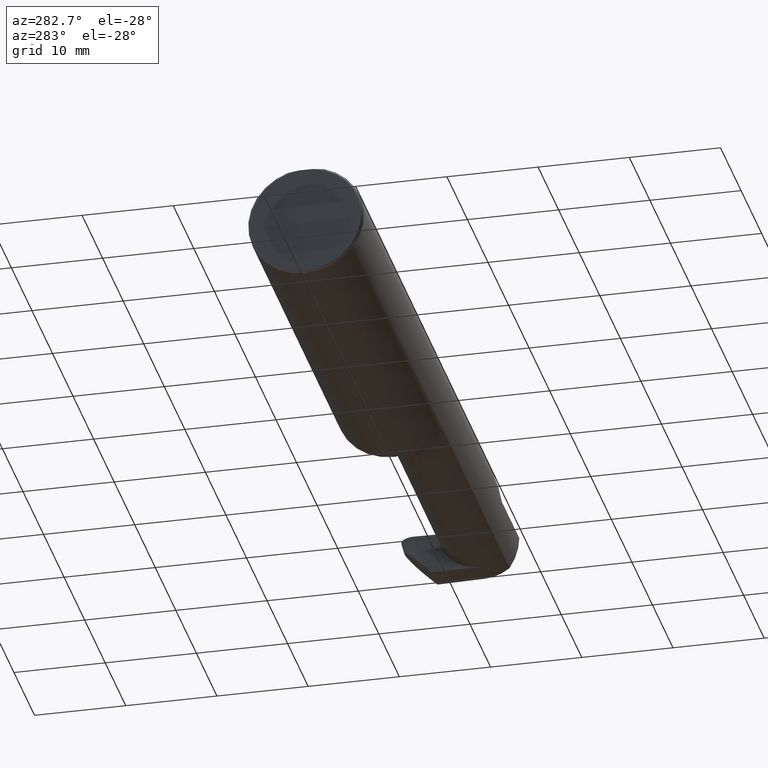
[diagram: clean part render]
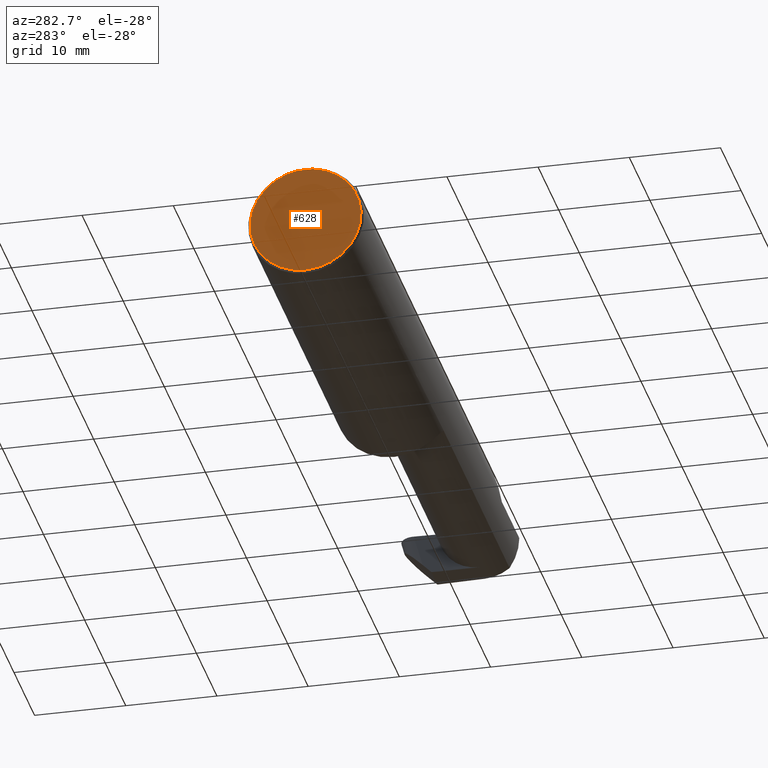
[diagram: same view with one face highlighted and labeled with its STEP entity id]
A machine part, auxiliary view. The second image highlights one B-rep face of the part: STEP entity #628.
In plain terms, the highlighted planar face has unit normal (1, 0, 0).
Its self-contained STEP definition (entity closure, byte-faithful):
#19 = AXIS2_PLACEMENT_3D ( 'NONE', #436, #652, #166 ) ;
#44 = VECTOR ( 'NONE', #144, 39.37007874015748143 ) ;
#75 = LINE ( 'NONE', #249, #44 ) ;
#76 = VERTEX_POINT ( 'NONE', #632 ) ;
#112 = AXIS2_PLACEMENT_3D ( 'NONE', #328, #277, #262 ) ;
#124 = ORIENTED_EDGE ( 'NONE', *, *, #675, .T. ) ;
#127 = VERTEX_POINT ( 'NONE', #256 ) ;
#143 = AXIS2_PLACEMENT_3D ( 'NONE', #543, #495, #699 ) ;
#144 = DIRECTION ( 'NONE',  ( -0.000000000000000000, 1.000000000000000000, -0.000000000000000000 ) ) ;
#166 = DIRECTION ( 'NONE',  ( 0.000000000000000000, 0.000000000000000000, -1.000000000000000000 ) ) ;
#214 = PLANE ( 'NONE',  #112 ) ;
#219 = ORIENTED_EDGE ( 'NONE', *, *, #460, .T. ) ;
#229 = EDGE_LOOP ( 'NONE', ( #219, #541, #124 ) ) ;
#249 = CARTESIAN_POINT ( 'NONE',  ( 0.000000000000000000, 0.2498499999999998500, 0.2378499999999998671 ) ) ;
#255 = EDGE_CURVE ( 'NONE', #127, #608, #325, .T. ) ;
#256 = CARTESIAN_POINT ( 'NONE',  ( 0.000000000000000000, 0.03090954545120574992, 0.2378499999999998671 ) ) ;
#262 = DIRECTION ( 'NONE',  ( 0.000000000000000000, 0.000000000000000000, -1.000000000000000000 ) ) ;
#277 = DIRECTION ( 'NONE',  ( 1.000000000000000000, 0.000000000000000000, 0.000000000000000000 ) ) ;
#325 = CIRCLE ( 'NONE', #19, 0.2398500000000001742 ) ;
#328 = CARTESIAN_POINT ( 'NONE',  ( 0.000000000000000000, 0.000000000000000000, 0.000000000000000000 ) ) ;
#420 = CIRCLE ( 'NONE', #143, 0.2398500000000001742 ) ;
#427 = FACE_OUTER_BOUND ( 'NONE', #229, .T. ) ;
#436 = CARTESIAN_POINT ( 'NONE',  ( 0.000000000000000000, 0.000000000000000000, 0.000000000000000000 ) ) ;
#460 = EDGE_CURVE ( 'NONE', #76, #127, #75, .T. ) ;
#495 = DIRECTION ( 'NONE',  ( -1.000000000000000000, -0.000000000000000000, -0.000000000000000000 ) ) ;
#541 = ORIENTED_EDGE ( 'NONE', *, *, #255, .T. ) ;
#543 = CARTESIAN_POINT ( 'NONE',  ( 0.000000000000000000, 0.000000000000000000, 0.000000000000000000 ) ) ;
#594 = CARTESIAN_POINT ( 'NONE',  ( 0.000000000000000000, 0.000000000000000000, -0.2398500000000001742 ) ) ;
#608 = VERTEX_POINT ( 'NONE', #594 ) ;
#628 = ADVANCED_FACE ( 'NONE', ( #427 ), #214, .F. ) ;
#632 = CARTESIAN_POINT ( 'NONE',  ( 0.000000000000000000, -0.03090954545120560767, 0.2378499999999998671 ) ) ;
#652 = DIRECTION ( 'NONE',  ( -1.000000000000000000, -0.000000000000000000, -0.000000000000000000 ) ) ;
#675 = EDGE_CURVE ( 'NONE', #608, #76, #420, .T. ) ;
#699 = DIRECTION ( 'NONE',  ( 0.000000000000000000, 0.000000000000000000, -1.000000000000000000 ) ) ;